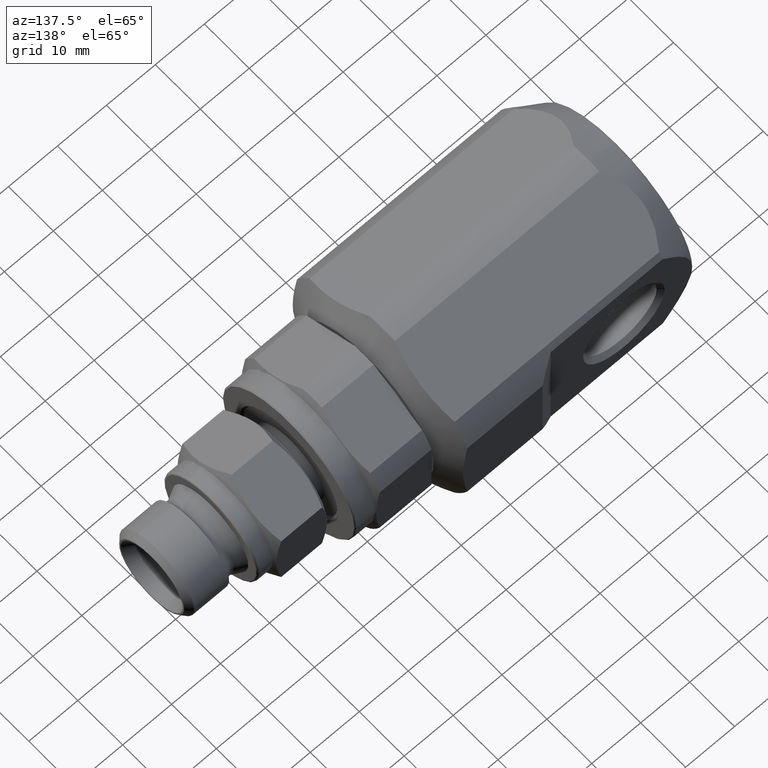
[diagram: clean part render]
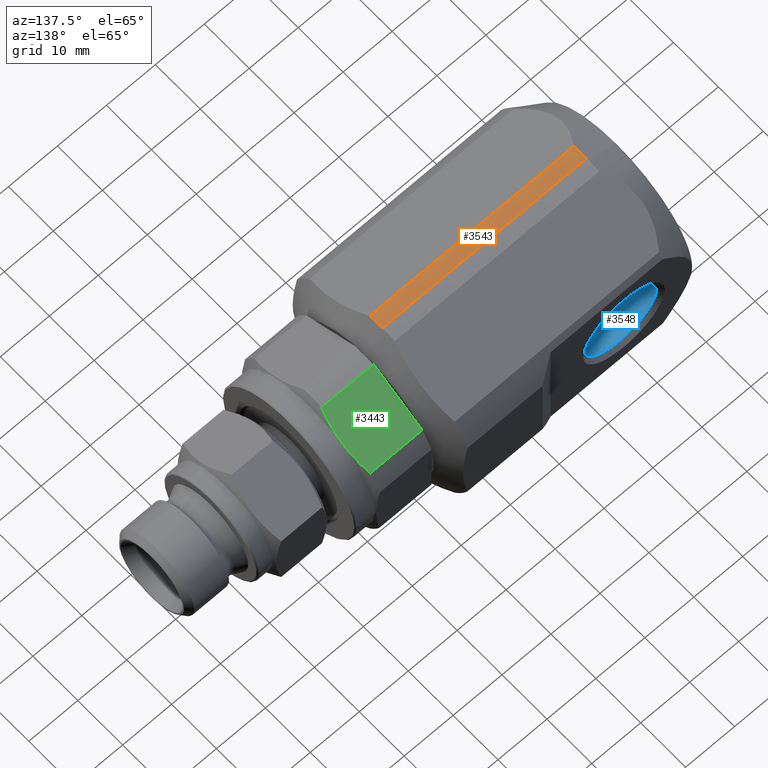
[diagram: same view with three faces highlighted in distinct colors, each labeled with its STEP entity id]
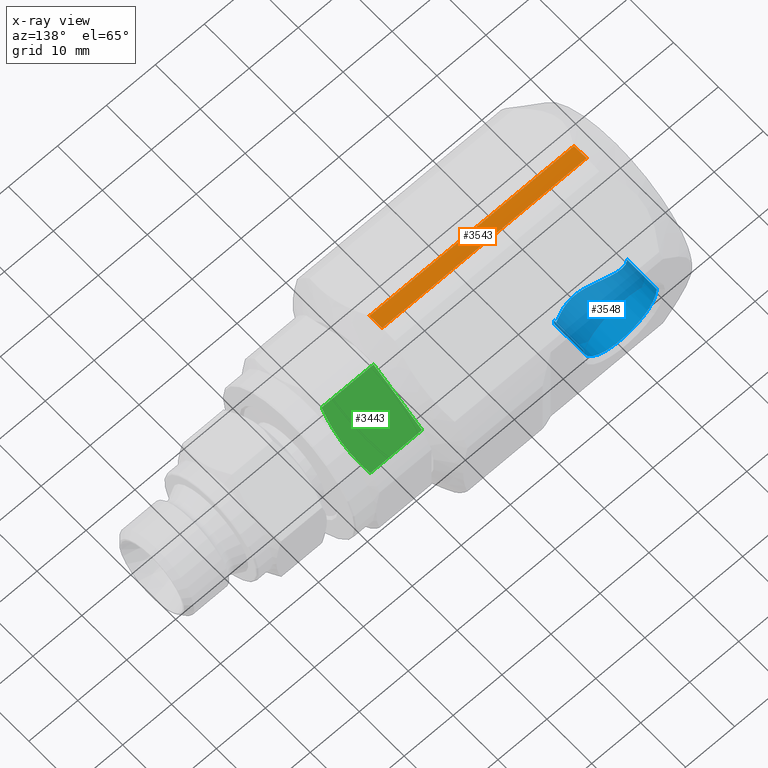
[diagram: x-ray of the same camera — body ghosted, the three highlighted faces saturated]
A machine part, auxiliary view with three faces highlighted in distinct colors.
The next image is the same camera in x-ray (body ghosted, the three faces saturated) — at least one of them is partly hidden behind the body in this view.
Their STEP definitions:

[orange] entity #3543 — the highlighted cylindrical surface (partial cylindrical patch) has radius 20.5 mm, axis along (-1, 0, 0).
#43 = VERTEX_POINT ( 'NONE', #437 ) ;
#159 = ORIENTED_EDGE ( 'NONE', *, *, #2306, .F. ) ;
#165 = ORIENTED_EDGE ( 'NONE', *, *, #2304, .T. ) ;
#171 = ORIENTED_EDGE ( 'NONE', *, *, #2303, .T. ) ;
#180 = ORIENTED_EDGE ( 'NONE', *, *, #2305, .F. ) ;
#234 = EDGE_LOOP ( 'NONE', ( #171, #165, #180, #159 ) ) ;
#437 = CARTESIAN_POINT ( 'NONE',  ( 47.82457351945704700, 0.0000000000000000000, 20.50000000000000000 ) ) ;
#1042 = CARTESIAN_POINT ( 'NONE',  ( 47.82457351945704700, 0.0000000000000000000, 0.0000000000000000000 ) ) ;
#1043 = DIRECTION ( 'NONE',  ( -1.000000000000000000, 0.0000000000000000000, 0.0000000000000000000 ) ) ;
#1044 = DIRECTION ( 'NONE',  ( 0.0000000000000000000, 0.0000000000000000000, 1.000000000000000000 ) ) ;
#1045 = CARTESIAN_POINT ( 'NONE',  ( 9.247099999999999700, 0.0000000000000000000, 20.50000000000000000 ) ) ;
#1046 = DIRECTION ( 'NONE',  ( -1.000000000000000000, 0.0000000000000000000, 0.0000000000000000000 ) ) ;
#1047 = CARTESIAN_POINT ( 'NONE',  ( 6.062177826491098800, 0.0000000000000000000, 0.0000000000000000000 ) ) ;
#1048 = DIRECTION ( 'NONE',  ( -1.000000000000000000, 0.0000000000000000000, 0.0000000000000000000 ) ) ;
#1049 = DIRECTION ( 'NONE',  ( 0.0000000000000000000, 0.0000000000000000000, 1.000000000000000000 ) ) ;
#1050 = CARTESIAN_POINT ( 'NONE',  ( 9.247099999999999700, -2.833854187013327100, 20.30318375148949900 ) ) ;
#1051 = DIRECTION ( 'NONE',  ( -1.000000000000000000, 0.0000000000000000000, 0.0000000000000000000 ) ) ;
#1852 = CARTESIAN_POINT ( 'NONE',  ( 47.82457351945704700, -2.833854187013325400, 20.30318375148949500 ) ) ;
#1856 = CARTESIAN_POINT ( 'NONE',  ( 6.062177826491098800, 2.510525938252074500E-015, 20.50000000000000000 ) ) ;
#1858 = CARTESIAN_POINT ( 'NONE',  ( 6.062177826491099700, -2.833854187013327100, 20.30318375148949900 ) ) ;
#2145 = CARTESIAN_POINT ( 'NONE',  ( 9.247099999999999700, 0.0000000000000000000, 0.0000000000000000000 ) ) ;
#2146 = DIRECTION ( 'NONE',  ( -1.000000000000000000, 0.0000000000000000000, 0.0000000000000000000 ) ) ;
#2147 = DIRECTION ( 'NONE',  ( 0.0000000000000000000, 0.0000000000000000000, 1.000000000000000000 ) ) ;
#2303 = EDGE_CURVE ( 'NONE', #2736, #43, #3081, .T. ) ;
#2304 = EDGE_CURVE ( 'NONE', #43, #2740, #3080, .T. ) ;
#2305 = EDGE_CURVE ( 'NONE', #2742, #2740, #3084, .T. ) ;
#2306 = EDGE_CURVE ( 'NONE', #2736, #2742, #3083, .T. ) ;
#2470 = AXIS2_PLACEMENT_3D ( 'NONE', #1042, #1043, #1044 ) ;
#2471 = AXIS2_PLACEMENT_3D ( 'NONE', #1047, #1048, #1049 ) ;
#2597 = AXIS2_PLACEMENT_3D ( 'NONE', #2145, #2146, #2147 ) ;
#2736 = VERTEX_POINT ( 'NONE', #1852 ) ;
#2740 = VERTEX_POINT ( 'NONE', #1856 ) ;
#2742 = VERTEX_POINT ( 'NONE', #1858 ) ;
#3080 = LINE ( 'NONE', #1045, #3082 ) ;
#3081 = CIRCLE ( 'NONE', #2470, 20.50000000000000000 ) ;
#3082 = VECTOR ( 'NONE', #1046, 1000.000000000000000 ) ;
#3083 = LINE ( 'NONE', #1050, #3085 ) ;
#3084 = CIRCLE ( 'NONE', #2471, 20.50000000000000000 ) ;
#3085 = VECTOR ( 'NONE', #1051, 1000.000000000000000 ) ;
#3371 = FACE_OUTER_BOUND ( 'NONE', #234, .T. ) ;
#3372 = CYLINDRICAL_SURFACE ( 'NONE', #2597, 20.50000000000000000 ) ;
#3543 = ADVANCED_FACE ( 'NONE', ( #3371 ), #3372, .T. ) ;

[blue] entity #3548 — the highlighted cylindrical surface (partial cylindrical patch) has radius 7.475 mm, axis along (-0, 1, 0).
#157 = VERTEX_POINT ( 'NONE', #539 ) ;
#245 = EDGE_LOOP ( 'NONE', ( #3483, #3489, #3500, #3503 ) ) ;
#321 = VERTEX_POINT ( 'NONE', #603 ) ;
#322 = VERTEX_POINT ( 'NONE', #604 ) ;
#323 = VERTEX_POINT ( 'NONE', #605 ) ;
#539 = CARTESIAN_POINT ( 'NONE',  ( 21.47500000000000500, 9.532936557604900300, 1.095200081566673900E-015 ) ) ;
#603 = CARTESIAN_POINT ( 'NONE',  ( 21.47500000000000100, 16.12500000000000400, 9.154234823626462600E-016 ) ) ;
#604 = CARTESIAN_POINT ( 'NONE',  ( 6.525000000000000400, 16.12500000000000400, 0.0000000000000000000 ) ) ;
#605 = CARTESIAN_POINT ( 'NONE',  ( 6.525000000000003000, 9.532936557604898600, 0.0000000000000000000 ) ) ;
#1201 = CARTESIAN_POINT ( 'NONE',  ( 14.00000000000000000, 16.12500000000000400, 0.0000000000000000000 ) ) ;
#1202 = DIRECTION ( 'NONE',  ( -1.727545524323244000E-016, 1.000000000000000000, 0.0000000000000000000 ) ) ;
#1203 = DIRECTION ( 'NONE',  ( -1.000000000000000000, 0.0000000000000000000, 0.0000000000000000000 ) ) ;
#1211 = CARTESIAN_POINT ( 'NONE',  ( 6.525000000000003000, 9.532936557604898600, 0.0000000000000000000 ) ) ;
#1212 = CARTESIAN_POINT ( 'NONE',  ( 6.525000000000004800, 9.532936557604898600, -0.5213980101624521300 ) ) ;
#1213 = CARTESIAN_POINT ( 'NONE',  ( 6.578925081936869600, 9.490802250437466700, -1.030243780129206600 ) ) ;
#1214 = CARTESIAN_POINT ( 'NONE',  ( 6.734666928712089300, 9.370627299291983900, -1.776258120248953400 ) ) ;
#1215 = CARTESIAN_POINT ( 'NONE',  ( 6.799611434596272400, 9.320677877369231400, -2.023360503288628400 ) ) ;
#1216 = CARTESIAN_POINT ( 'NONE',  ( 6.952831548547162100, 9.203743898548733400, -2.505394187730342300 ) ) ;
#1217 = CARTESIAN_POINT ( 'NONE',  ( 7.040415459721465700, 9.137286779362865400, -2.738721027043906200 ) ) ;
#1218 = CARTESIAN_POINT ( 'NONE',  ( 7.236005709932936000, 8.990384584462326200, -3.191361947695145100 ) ) ;
#1219 = CARTESIAN_POINT ( 'NONE',  ( 7.344017802419017500, 8.909931884315849300, -3.410670834687701300 ) ) ;
#1220 = CARTESIAN_POINT ( 'NONE',  ( 7.579799533530463800, 8.736634053547165400, -3.836117898012081400 ) ) ;
#1221 = CARTESIAN_POINT ( 'NONE',  ( 7.708237134761630700, 8.643313643740659900, -4.043126949055238800 ) ) ;
#1222 = CARTESIAN_POINT ( 'NONE',  ( 8.116454364308916400, 8.351740899894013000, -4.635691713975123000 ) ) ;
#1223 = CARTESIAN_POINT ( 'NONE',  ( 8.419328902179570300, 8.141424686654476200, -4.995061232621504000 ) ) ;
#1224 = CARTESIAN_POINT ( 'NONE',  ( 8.919135903223091700, 7.813375245185969900, -5.487729078134685200 ) ) ;
#1225 = CARTESIAN_POINT ( 'NONE',  ( 9.094182091586626300, 7.701453508302420500, -5.644736251344623300 ) ) ;
#1226 = CARTESIAN_POINT ( 'NONE',  ( 9.455885484999445400, 7.478402778349027000, -5.939791239792422000 ) ) ;
#1227 = CARTESIAN_POINT ( 'NONE',  ( 9.642530080400311100, 7.367239396652957200, -6.077992200217019900 ) ) ;
#1228 = CARTESIAN_POINT ( 'NONE',  ( 10.22095118818476900, 7.038593409255735600, -6.466068993010996900 ) ) ;
#1229 = CARTESIAN_POINT ( 'NONE',  ( 10.63068133424008200, 6.825419206938278200, -6.689836925969168600 ) ) ;
#1230 = CARTESIAN_POINT ( 'NONE',  ( 11.29345781085107700, 6.536030009380287000, -6.971936941785380700 ) ) ;
#1231 = CARTESIAN_POINT ( 'NONE',  ( 11.52311944550198900, 6.444679166900258800, -7.056968104725307900 ) ) ;
#1232 = CARTESIAN_POINT ( 'NONE',  ( 11.99087444440347600, 6.281645458794557200, -7.204106510470929000 ) ) ;
#1233 = CARTESIAN_POINT ( 'NONE',  ( 12.23013664871725800, 6.209402700709193600, -7.266783754463538100 ) ) ;
#1234 = CARTESIAN_POINT ( 'NONE',  ( 12.72134091065364100, 6.089056183648998500, -7.369097186873088600 ) ) ;
#1235 = CARTESIAN_POINT ( 'NONE',  ( 12.97555082727328100, 6.040721104708002700, -7.408938701550697600 ) ) ;
#1236 = CARTESIAN_POINT ( 'NONE',  ( 13.48758102023682100, 5.976012752192851900, -7.461856041228258200 ) ) ;
#1237 = CARTESIAN_POINT ( 'NONE',  ( 13.99986055887924900, 5.943219119330371400, -7.488142832172281200 ) ) ;
#1238 = CARTESIAN_POINT ( 'NONE',  ( 14.51264429634244900, 5.976011069800566000, -7.461858085967441500 ) ) ;
#1239 = CARTESIAN_POINT ( 'NONE',  ( 15.02567885185544200, 6.040906749357633400, -7.408786213850863300 ) ) ;
#1240 = CARTESIAN_POINT ( 'NONE',  ( 15.27930325199454000, 6.089175620765598900, -7.368999240526124900 ) ) ;
#1241 = CARTESIAN_POINT ( 'NONE',  ( 15.77128922785780700, 6.209790591257243100, -7.266450377502985200 ) ) ;
#1242 = CARTESIAN_POINT ( 'NONE',  ( 16.01140267494694300, 6.282328634918045800, -7.203515029575628500 ) ) ;
#1243 = CARTESIAN_POINT ( 'NONE',  ( 16.48154353738240700, 6.446416572831038700, -7.055374630321292500 ) ) ;
#1244 = CARTESIAN_POINT ( 'NONE',  ( 16.71055237347840000, 6.537696750462930400, -6.970349977115663600 ) ) ;
#1245 = CARTESIAN_POINT ( 'NONE',  ( 17.37088124253493100, 6.826271789423487700, -6.688929401638867000 ) ) ;
#1246 = CARTESIAN_POINT ( 'NONE',  ( 17.78112885182105900, 7.039640605306559000, -6.465014259107018500 ) ) ;
#1247 = CARTESIAN_POINT ( 'NONE',  ( 18.36210403741290200, 7.369940708513949400, -6.074710141884859000 ) ) ;
#1248 = CARTESIAN_POINT ( 'NONE',  ( 18.55067291789392300, 7.482351900389860900, -5.934780597949855800 ) ) ;
#1249 = CARTESIAN_POINT ( 'NONE',  ( 18.91252871300704900, 7.705690633699497000, -5.638910036109496800 ) ) ;
#1250 = CARTESIAN_POINT ( 'NONE',  ( 19.08563654920546800, 7.816462218330525700, -5.483261530327068200 ) ) ;
#1251 = CARTESIAN_POINT ( 'NONE',  ( 19.58282185671310300, 8.142928837995949500, -4.992459273596872500 ) ) ;
#1252 = CARTESIAN_POINT ( 'NONE',  ( 19.88509280526589900, 8.352820104574760800, -4.633779773180670200 ) ) ;
#1253 = CARTESIAN_POINT ( 'NONE',  ( 20.29350558078773400, 8.644571450972511800, -4.040428731313830300 ) ) ;
#1254 = CARTESIAN_POINT ( 'NONE',  ( 20.42191784548034800, 8.737886725827440400, -3.833237236305520900 ) ) ;
#1255 = CARTESIAN_POINT ( 'NONE',  ( 20.65743746340797000, 8.911011212607626000, -3.407823784280850100 ) ) ;
#1256 = CARTESIAN_POINT ( 'NONE',  ( 20.76530411900301200, 8.991362994373554700, -3.188572089473758800 ) ) ;
#1257 = CARTESIAN_POINT ( 'NONE',  ( 20.96059191214166300, 9.138048816169019900, -2.736145468537480900 ) ) ;
#1258 = CARTESIAN_POINT ( 'NONE',  ( 21.04801865503488800, 9.204390376449444100, -2.502975594179202000 ) ) ;
#1259 = CARTESIAN_POINT ( 'NONE',  ( 21.20093506301941800, 9.321097350710713800, -2.021382696313116500 ) ) ;
#1260 = CARTESIAN_POINT ( 'NONE',  ( 21.26612963039118800, 9.371240310642754400, -1.773046102104801000 ) ) ;
#1261 = CARTESIAN_POINT ( 'NONE',  ( 21.42171733686136300, 9.491301268823070500, -1.025946350976838300 ) ) ;
#1262 = CARTESIAN_POINT ( 'NONE',  ( 21.47500000000000900, 9.532936557604916300, -0.5181578848427591500 ) ) ;
#1263 = CARTESIAN_POINT ( 'NONE',  ( 21.47500000000000500, 9.532936557604900300, 1.095200081566673900E-015 ) ) ;
#1264 = CARTESIAN_POINT ( 'NONE',  ( 21.47500000000000100, 20.08309999999999800, 9.154234823626464600E-016 ) ) ;
#1265 = DIRECTION ( 'NONE',  ( -1.727545524323244000E-016, 1.000000000000000000, 0.0000000000000000000 ) ) ;
#1266 = CARTESIAN_POINT ( 'NONE',  ( 6.525000000000001200, 20.08309999999999800, 0.0000000000000000000 ) ) ;
#1267 = DIRECTION ( 'NONE',  ( -1.727545524323244000E-016, 1.000000000000000000, 0.0000000000000000000 ) ) ;
#1770 = B_SPLINE_CURVE_WITH_KNOTS ( 'NONE', 3,
 ( #1211, #1212, #1213, #1214, #1215, #1216, #1217, #1218, #1219, #1220, #1221, #1222, #1223, #1224, #1225, #1226, #1227, #1228, #1229, #1230, #1231, #1232, #1233, #1234, #1235, #1236, #1237, #1238, #1239, #1240, #1241, #1242, #1243, #1244, #1245, #1246, #1247, #1248, #1249, #1250, #1251, #1252, #1253, #1254, #1255, #1256, #1257, #1258, #1259, #1260, #1261, #1262, #1263 ),
 .UNSPECIFIED., .F., .F.,
 ( 4, 2, 2, 2, 2, 2, 2, 2, 2, 2, 2, 2, 2, 1, 2, 2, 2, 2, 2, 2, 2, 2, 2, 2, 2, 2, 4 ),
 ( 0.0000000000000000000, 0.001538526655836168500, 0.002307789983754252300, 0.003077053311672337000, 0.003846316639590421200, 0.004615579967508504600, 0.006154106623344674000, 0.006923369951262759100, 0.007692633279180845000, 0.009231159935017017900, 0.01000042326293510900, 0.01076968659085319900, 0.01153894991877128800, 0.01230821324668937700, 0.01307747657460746900, 0.01384673990252555600, 0.01461600323044364600, 0.01538526655836173700, 0.01692379321419791900, 0.01769305654211601700, 0.01846231987003410900, 0.02000084652587031200, 0.02077010985378841000, 0.02153937318170650500, 0.02230863650962460300, 0.02307789983754270100, 0.02461642649337889700 ),
 .UNSPECIFIED. ) ;
#2160 = CARTESIAN_POINT ( 'NONE',  ( 14.00000000000000000, 20.08309999999999800, 0.0000000000000000000 ) ) ;
#2161 = DIRECTION ( 'NONE',  ( -1.727545524323244000E-016, 1.000000000000000000, 0.0000000000000000000 ) ) ;
#2162 = DIRECTION ( 'NONE',  ( -1.000000000000000000, 0.0000000000000000000, 0.0000000000000000000 ) ) ;
#2326 = EDGE_CURVE ( 'NONE', #321, #322, #3102, .T. ) ;
#2330 = EDGE_CURVE ( 'NONE', #323, #157, #1770, .T. ) ;
#2331 = EDGE_CURVE ( 'NONE', #157, #321, #3107, .T. ) ;
#2332 = EDGE_CURVE ( 'NONE', #323, #322, #3109, .T. ) ;
#2483 = AXIS2_PLACEMENT_3D ( 'NONE', #1201, #1202, #1203 ) ;
#2602 = AXIS2_PLACEMENT_3D ( 'NONE', #2160, #2161, #2162 ) ;
#3102 = CIRCLE ( 'NONE', #2483, 7.474999999999999600 ) ;
#3107 = LINE ( 'NONE', #1264, #3108 ) ;
#3108 = VECTOR ( 'NONE', #1265, 1000.000000000000000 ) ;
#3109 = LINE ( 'NONE', #1266, #3110 ) ;
#3110 = VECTOR ( 'NONE', #1267, 1000.000000000000000 ) ;
#3381 = FACE_OUTER_BOUND ( 'NONE', #245, .T. ) ;
#3382 = CYLINDRICAL_SURFACE ( 'NONE', #2602, 7.474999999999998800 ) ;
#3483 = ORIENTED_EDGE ( 'NONE', *, *, #2330, .T. ) ;
#3489 = ORIENTED_EDGE ( 'NONE', *, *, #2331, .T. ) ;
#3500 = ORIENTED_EDGE ( 'NONE', *, *, #2326, .T. ) ;
#3503 = ORIENTED_EDGE ( 'NONE', *, *, #2332, .F. ) ;
#3548 = ADVANCED_FACE ( 'NONE', ( #3381 ), #3382, .F. ) ;

[green] entity #3443 — the highlighted planar face has unit normal (0, 0.5, 0.866).
#76 = ORIENTED_EDGE ( 'NONE', *, *, #2283, .T. ) ;
#95 = ORIENTED_EDGE ( 'NONE', *, *, #2400, .T. ) ;
#99 = ORIENTED_EDGE ( 'NONE', *, *, #2389, .T. ) ;
#277 = EDGE_LOOP ( 'NONE', ( #1767, #99, #76, #95 ) ) ;
#359 = VERTEX_POINT ( 'NONE', #649 ) ;
#360 = VERTEX_POINT ( 'NONE', #650 ) ;
#366 = VERTEX_POINT ( 'NONE', #656 ) ;
#367 = VERTEX_POINT ( 'NONE', #657 ) ;
#649 = CARTESIAN_POINT ( 'NONE',  ( 51.50000000000002100, 2.087341226347239500, 16.11538105676659400 ) ) ;
#650 = CARTESIAN_POINT ( 'NONE',  ( 51.50000000000002100, 12.91265877365276000, 9.865381056766587200 ) ) ;
#656 = CARTESIAN_POINT ( 'NONE',  ( 62.09170962313454100, 12.91265877365275800, 9.865381056766588900 ) ) ;
#657 = CARTESIAN_POINT ( 'NONE',  ( 62.09170962313454100, 2.087341226347243500, 16.11538105676659400 ) ) ;
#937 = CARTESIAN_POINT ( 'NONE',  ( 62.09170962313454100, 2.087341226347243500, 16.11538105676659400 ) ) ;
#938 = CARTESIAN_POINT ( 'NONE',  ( 62.32056471557177000, 2.979876086852425700, 15.60007581479281100 ) ) ;
#939 = CARTESIAN_POINT ( 'NONE',  ( 62.50171378437107000, 3.875226683900166300, 15.08314490656820800 ) ) ;
#940 = CARTESIAN_POINT ( 'NONE',  ( 62.74782823730480900, 5.672785348428395700, 14.04532392771868900 ) ) ;
#941 = CARTESIAN_POINT ( 'NONE',  ( 62.81250482273771500, 6.575010461577237600, 13.52442401577257200 ) ) ;
#942 = CARTESIAN_POINT ( 'NONE',  ( 62.81382988437361800, 7.933995999065651000, 12.73981334987882800 ) ) ;
#943 = CARTESIAN_POINT ( 'NONE',  ( 62.79843261559753400, 8.387926035585467200, 12.47773672110085400 ) ) ;
#944 = CARTESIAN_POINT ( 'NONE',  ( 62.73607414223382500, 9.297649096162402300, 11.95250786718875200 ) ) ;
#945 = CARTESIAN_POINT ( 'NONE',  ( 62.68895616441762500, 9.754414708166324400, 11.68879411814172000 ) ) ;
#946 = CARTESIAN_POINT ( 'NONE',  ( 62.50341298949118900, 11.11778196657161800, 10.90165366449710400 ) ) ;
#947 = CARTESIAN_POINT ( 'NONE',  ( 62.32098334626201100, 12.01849125345606600, 10.38162891525277200 ) ) ;
#948 = CARTESIAN_POINT ( 'NONE',  ( 62.09170962313454100, 12.91265877365275800, 9.865381056766588900 ) ) ;
#1555 = CARTESIAN_POINT ( 'NONE',  ( 63.43380000000004100, 2.087341226347238200, 16.11538105676659800 ) ) ;
#1556 = DIRECTION ( 'NONE',  ( 1.000000000000000000, -1.283015817066142700E-017, -4.934663061432562100E-017 ) ) ;
#1602 = CARTESIAN_POINT ( 'NONE',  ( 63.43380000000004100, 12.91265877365276000, 9.865381056766587200 ) ) ;
#1603 = DIRECTION ( 'NONE',  ( -1.000000000000000000, 1.283015817066142700E-017, 4.934663061432562100E-017 ) ) ;
#1606 = CARTESIAN_POINT ( 'NONE',  ( 51.50000000000002100, 1.524424713887364100, 16.44038105676659000 ) ) ;
#1607 = DIRECTION ( 'NONE',  ( 1.356207239679732800E-017, -0.8660254037844389300, 0.4999999999999993300 ) ) ;
#1767 = ORIENTED_EDGE ( 'NONE', *, *, #2402, .T. ) ;
#1793 = B_SPLINE_CURVE_WITH_KNOTS ( 'NONE', 3,
 ( #937, #938, #939, #940, #941, #942, #943, #944, #945, #946, #947, #948 ),
 .UNSPECIFIED., .F., .F.,
 ( 4, 2, 2, 2, 2, 4 ),
 ( 9.121259195220051500E-007, 0.003132271405275815400, 0.006263630684632108900, 0.007829310324310256500, 0.009394989963988402400, 0.01252634924334469900 ),
 .UNSPECIFIED. ) ;
#1953 = PLANE ( 'NONE',  #2542 ) ;
#1954 = CARTESIAN_POINT ( 'NONE',  ( 66.90000000000002000, 15.00000000000001400, 8.660254037844401500 ) ) ;
#1955 = DIRECTION ( 'NONE',  ( 4.915051478850353900E-017, 0.4999999999999993900, 0.8660254037844390400 ) ) ;
#1956 = DIRECTION ( 'NONE',  ( -1.356207239679732900E-017, 0.8660254037844390400, -0.4999999999999993900 ) ) ;
#2283 = EDGE_CURVE ( 'NONE', #367, #366, #1793, .T. ) ;
#2389 = EDGE_CURVE ( 'NONE', #359, #367, #3185, .T. ) ;
#2400 = EDGE_CURVE ( 'NONE', #366, #360, #3199, .T. ) ;
#2402 = EDGE_CURVE ( 'NONE', #360, #359, #3204, .T. ) ;
#2542 = AXIS2_PLACEMENT_3D ( 'NONE', #1954, #1955, #1956 ) ;
#3185 = LINE ( 'NONE', #1555, #3186 ) ;
#3186 = VECTOR ( 'NONE', #1556, 1000.000000000000000 ) ;
#3199 = LINE ( 'NONE', #1602, #3201 ) ;
#3201 = VECTOR ( 'NONE', #1603, 1000.000000000000000 ) ;
#3204 = LINE ( 'NONE', #1606, #3205 ) ;
#3205 = VECTOR ( 'NONE', #1607, 1000.000000000000200 ) ;
#3276 = FACE_OUTER_BOUND ( 'NONE', #277, .T. ) ;
#3443 = ADVANCED_FACE ( 'NONE', ( #3276 ), #1953, .T. ) ;